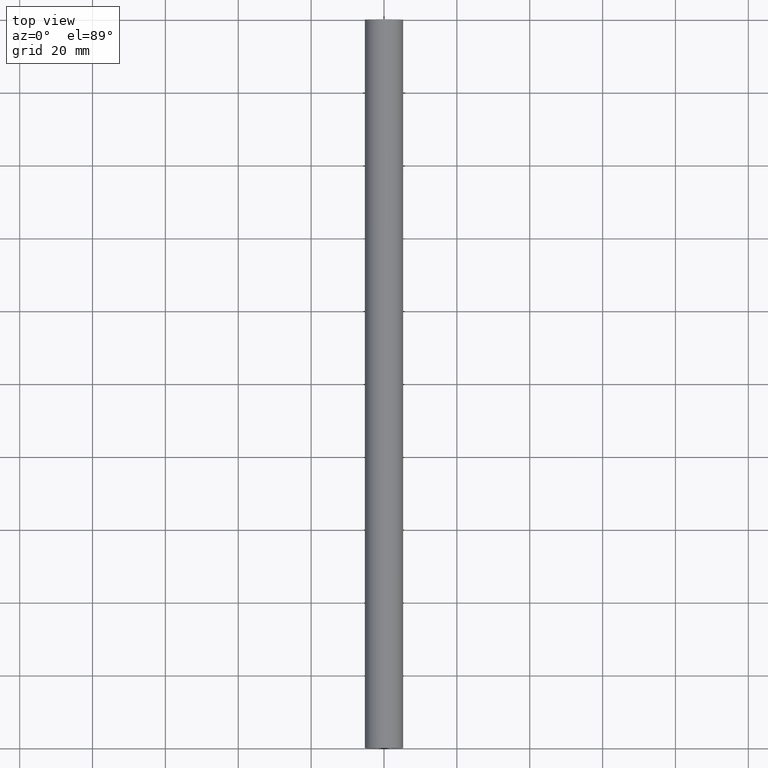
[diagram: clean part render]
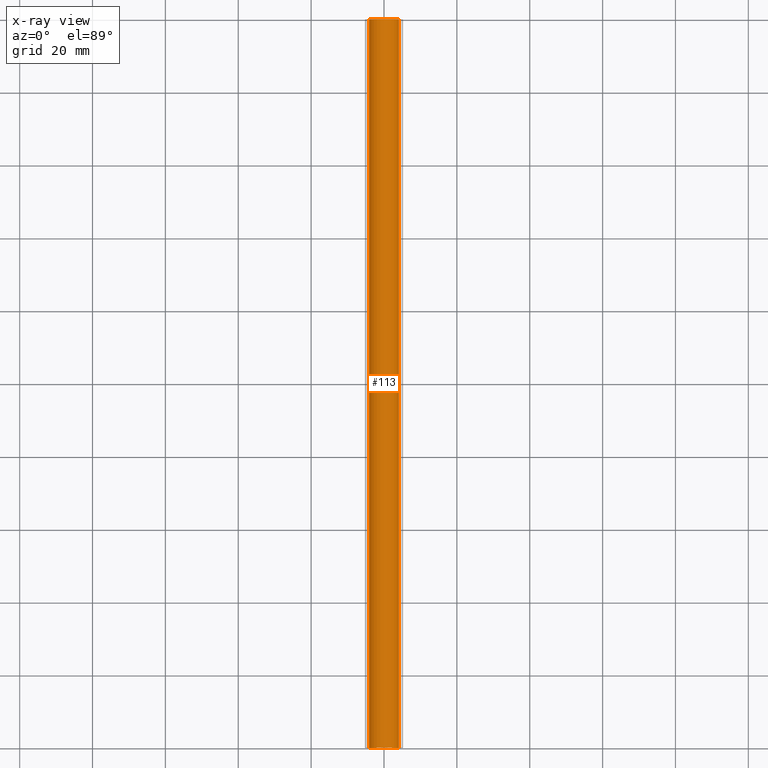
[diagram: x-ray — body ghosted, one internal face saturated and labeled with its STEP entity id]
A machine part, top view, then the same camera in x-ray: the body is ghosted and one INTERNAL B-rep face — a face not visible from any outside direction — is saturated and labeled: STEP entity #113.
In plain terms, the highlighted cylindrical surface (edge-blend (fillet) strip) has radius 4.1 mm, axis along (0, -1, -0).
Its self-contained STEP definition (entity closure, byte-faithful):
#113=ADVANCED_FACE('',(#158),#157,.F.);
#157=CYLINDRICAL_SURFACE('',#497,4.10000000000E+00);
#158=FACE_OUTER_BOUND('',#498,.T.);
#494=CARTESIAN_POINT('',(9.26998195222E-14,-5.12500000000E+00,-5.25000000000E+00));
#495=DIRECTION('',(8.79655389117E-16,-1.00000000000E+00,-4.29001161206E-15));
#496=DIRECTION('',(-7.19543892494E-03,4.28357104773E-15,-9.99974112494E-01));
#497=AXIS2_PLACEMENT_3D('',#494,#495,#496);
#498=EDGE_LOOP('',(#682,#683,#684,#685));
#682=ORIENTED_EDGE('',*,*,#855,.T.);
#683=ORIENTED_EDGE('',*,*,#862,.F.);
#684=ORIENTED_EDGE('',*,*,#863,.F.);
#685=ORIENTED_EDGE('',*,*,#864,.T.);
#855=EDGE_CURVE('',#1036,#1028,#1037,.T.);
#862=EDGE_CURVE('',#1084,#1028,#1085,.T.);
#863=EDGE_CURVE('',#1091,#1084,#1092,.T.);
#864=EDGE_CURVE('',#1091,#1036,#1098,.T.);
#1028=VERTEX_POINT('',#1590);
#1036=VERTEX_POINT('',#1595);
#1037=CIRCLE('',#1599,4.10000000000E+00);
#1084=VERTEX_POINT('',#1624);
#1085=LINE('',#1625,#1626);
#1091=VERTEX_POINT('',#1628);
#1092=CIRCLE('',#1632,4.10000000000E+00);
#1098=LINE('',#1633,#1634);
#1590=CARTESIAN_POINT('',(-4.03879716429E+00,0.00000000000E+00,-5.95577437309E+00));
#1595=CARTESIAN_POINT('',(4.03879716429E+00,0.00000000000E+00,-5.95577437309E+00));
#1596=CARTESIAN_POINT('',(-3.57555656617E-16,0.00000000000E+00,-5.25000000000E+00));
#1597=DIRECTION('',(0.00000000000E+00,-1.00000000000E+00,0.00000000000E+00));
#1598=DIRECTION('',(9.85072479095E-01,0.00000000000E+00,-1.72140090998E-01));
#1599=AXIS2_PLACEMENT_3D('',#1596,#1597,#1598);
#1624=CARTESIAN_POINT('',(-4.03879716429E+00,2.00000000000E+02,-5.95577437309E+00));
#1625=CARTESIAN_POINT('',(-4.03879716429E+00,2.00000000000E+02,-5.95577437309E+00));
#1626=VECTOR('',#1627,2.00000000000E+02);
#1627=DIRECTION('',(0.00000000000E+00,-1.00000000000E+00,0.00000000000E+00));
#1628=CARTESIAN_POINT('',(4.03879716429E+00,2.00000000000E+02,-5.95577437309E+00));
#1629=CARTESIAN_POINT('',(3.40880273281E-16,2.00000000000E+02,-5.25000000000E+00));
#1630=DIRECTION('',(4.70872009500E-15,-1.00000000000E+00,2.69456728554E-14));
#1631=DIRECTION('',(9.85072479095E-01,-3.34978825285E-30,-1.72140090998E-01));
#1632=AXIS2_PLACEMENT_3D('',#1629,#1630,#1631);
#1633=CARTESIAN_POINT('',(4.03879716429E+00,2.00000000000E+02,-5.95577437309E+00));
#1634=VECTOR('',#1635,2.00000000000E+02);
#1635=DIRECTION('',(1.28785870857E-16,-1.00000000000E+00,0.00000000000E+00));